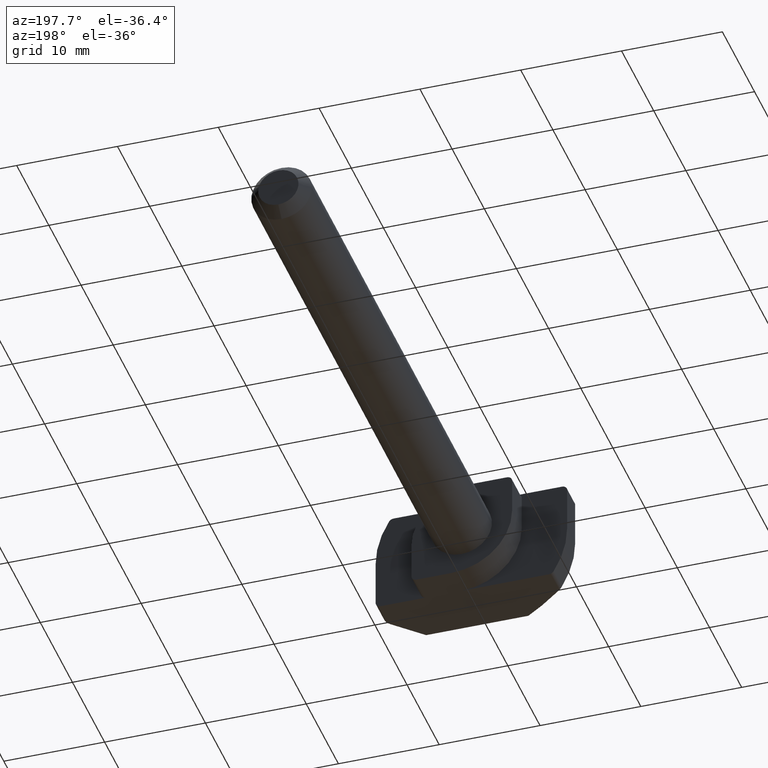
[diagram: clean part render]
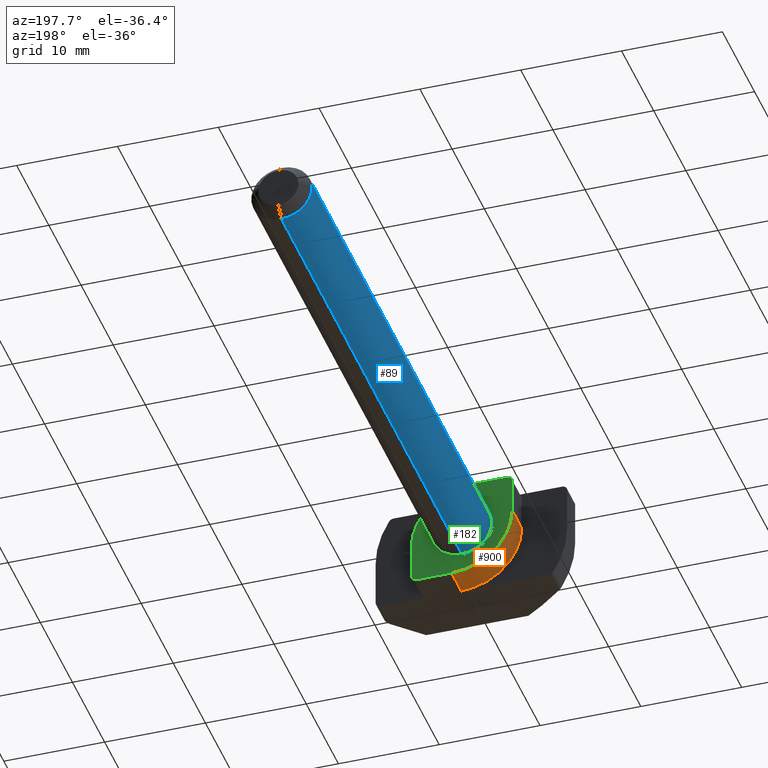
[diagram: same view with three faces highlighted in distinct colors, each labeled with its STEP entity id]
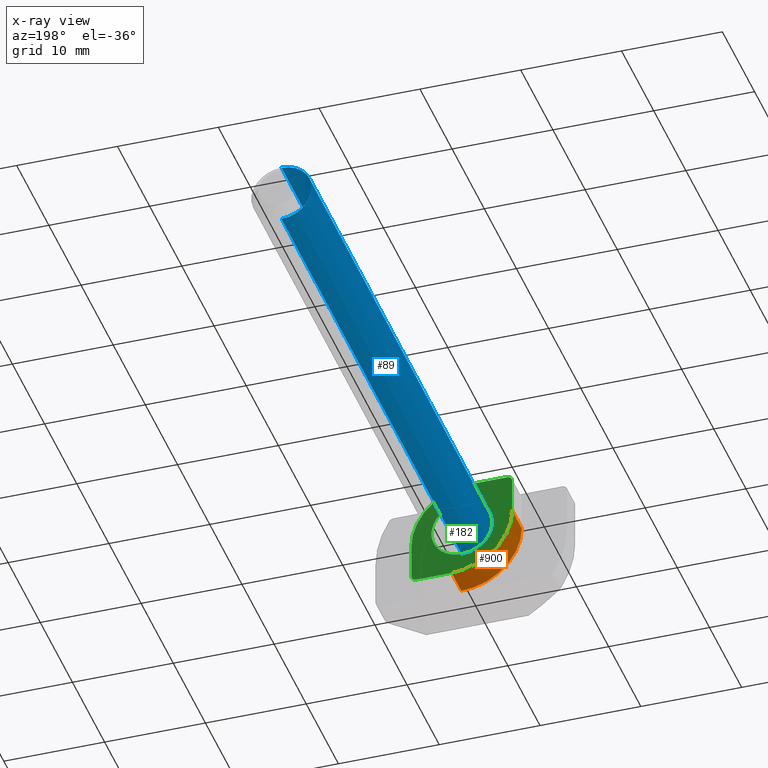
[diagram: x-ray of the same camera — body ghosted, the three highlighted faces saturated]
A machine part, auxiliary view with three faces highlighted in distinct colors.
The next image is the same camera in x-ray (body ghosted, the three faces saturated) — at least one of them is partly hidden behind the body in this view.
Their STEP definitions:

[orange] entity #900 — the highlighted cylindrical surface (partial cylindrical patch) has radius 6 mm, axis along (0, 1, 0).
#7 = VECTOR ( 'NONE', #454, 1000.000000000000000 ) ;
#28 = CARTESIAN_POINT ( 'NONE',  ( 0.9999999999999991118, 4.349999999999999645, 1.000000000000000000 ) ) ;
#44 = CARTESIAN_POINT ( 'NONE',  ( 0.9999999999999991118, 4.349999999999999645, -5.000000000000000000 ) ) ;
#51 = AXIS2_PLACEMENT_3D ( 'NONE', #406, #846, #839 ) ;
#75 = ORIENTED_EDGE ( 'NONE', *, *, #357, .F. ) ;
#122 = CARTESIAN_POINT ( 'NONE',  ( -5.000000000000000888, 1.349999999999999645, 1.000000000000000000 ) ) ;
#153 = ORIENTED_EDGE ( 'NONE', *, *, #804, .F. ) ;
#154 = VECTOR ( 'NONE', #834, 1000.000000000000000 ) ;
#161 = DIRECTION ( 'NONE',  ( -0.000000000000000000, 1.000000000000000000, -0.000000000000000000 ) ) ;
#181 = AXIS2_PLACEMENT_3D ( 'NONE', #28, #161, #374 ) ;
#198 = ORIENTED_EDGE ( 'NONE', *, *, #433, .F. ) ;
#286 = VERTEX_POINT ( 'NONE', #599 ) ;
#337 = CARTESIAN_POINT ( 'NONE',  ( -5.000000000000000888, 1.349999999999999645, 1.000000000000000000 ) ) ;
#347 = DIRECTION ( 'NONE',  ( 0.000000000000000000, -1.000000000000000000, 0.000000000000000000 ) ) ;
#356 = ORIENTED_EDGE ( 'NONE', *, *, #852, .F. ) ;
#357 = EDGE_CURVE ( 'NONE', #621, #286, #616, .T. ) ;
#374 = DIRECTION ( 'NONE',  ( 0.000000000000000000, 0.000000000000000000, -1.000000000000000000 ) ) ;
#406 = CARTESIAN_POINT ( 'NONE',  ( 0.9999999999999991118, 1.349999999999999645, 1.000000000000000000 ) ) ;
#426 = CYLINDRICAL_SURFACE ( 'NONE', #51, 6.000000000000000000 ) ;
#433 = EDGE_CURVE ( 'NONE', #434, #714, #632, .T. ) ;
#434 = VERTEX_POINT ( 'NONE', #657 ) ;
#435 = CARTESIAN_POINT ( 'NONE',  ( 0.9999999999999991118, 1.349999999999999645, 1.000000000000000000 ) ) ;
#454 = DIRECTION ( 'NONE',  ( -0.000000000000000000, 1.000000000000000000, -0.000000000000000000 ) ) ;
#571 = DIRECTION ( 'NONE',  ( 0.000000000000000000, 0.000000000000000000, -1.000000000000000000 ) ) ;
#599 = CARTESIAN_POINT ( 'NONE',  ( 0.9999999999999991118, 1.349999999999999645, -5.000000000000000000 ) ) ;
#610 = LINE ( 'NONE', #44, #7 ) ;
#616 = CIRCLE ( 'NONE', #796, 6.000000000000000000 ) ;
#621 = VERTEX_POINT ( 'NONE', #122 ) ;
#632 = CIRCLE ( 'NONE', #181, 6.000000000000000000 ) ;
#657 = CARTESIAN_POINT ( 'NONE',  ( 0.9999999999999991118, 4.349999999999999645, -5.000000000000000000 ) ) ;
#684 = FACE_OUTER_BOUND ( 'NONE', #750, .T. ) ;
#698 = LINE ( 'NONE', #337, #154 ) ;
#714 = VERTEX_POINT ( 'NONE', #868 ) ;
#750 = EDGE_LOOP ( 'NONE', ( #198, #153, #75, #356 ) ) ;
#796 = AXIS2_PLACEMENT_3D ( 'NONE', #435, #347, #571 ) ;
#804 = EDGE_CURVE ( 'NONE', #286, #434, #610, .T. ) ;
#834 = DIRECTION ( 'NONE',  ( 0.000000000000000000, -1.000000000000000000, 0.000000000000000000 ) ) ;
#839 = DIRECTION ( 'NONE',  ( 0.000000000000000000, 0.000000000000000000, 1.000000000000000000 ) ) ;
#846 = DIRECTION ( 'NONE',  ( 0.000000000000000000, 1.000000000000000000, 0.000000000000000000 ) ) ;
#852 = EDGE_CURVE ( 'NONE', #714, #621, #698, .T. ) ;
#868 = CARTESIAN_POINT ( 'NONE',  ( -5.000000000000000888, 4.349999999999999645, 1.000000000000000000 ) ) ;
#900 = ADVANCED_FACE ( 'NONE', ( #684 ), #426, .T. ) ;

[blue] entity #89 — the highlighted cylindrical surface (edge-blend (fillet) strip) has radius 3 mm, axis along (-0, -1, -0).
#3 = FACE_OUTER_BOUND ( 'NONE', #52, .T. ) ;
#52 = EDGE_LOOP ( 'NONE', ( #890, #485, #679, #556 ) ) ;
#70 = DIRECTION ( 'NONE',  ( 0.000000000000000000, 0.000000000000000000, -1.000000000000000000 ) ) ;
#89 = ADVANCED_FACE ( 'NONE', ( #3 ), #143, .T. ) ;
#115 = EDGE_CURVE ( 'NONE', #403, #670, #791, .T. ) ;
#139 = AXIS2_PLACEMENT_3D ( 'NONE', #649, #793, #862 ) ;
#141 = VERTEX_POINT ( 'NONE', #700 ) ;
#143 = CYLINDRICAL_SURFACE ( 'NONE', #661, 3.000000000000000444 ) ;
#172 = CARTESIAN_POINT ( 'NONE',  ( 3.673940397442059868E-16, 61.35000000000000142, 3.000000000000000444 ) ) ;
#270 = VERTEX_POINT ( 'NONE', #313 ) ;
#292 = CARTESIAN_POINT ( 'NONE',  ( 0.000000000000000000, 60.35000000000003695, -3.000000000000000444 ) ) ;
#313 = CARTESIAN_POINT ( 'NONE',  ( 3.673940397442059868E-16, 60.35000000000003695, 3.000000000000000444 ) ) ;
#325 = EDGE_CURVE ( 'NONE', #670, #141, #873, .T. ) ;
#403 = VERTEX_POINT ( 'NONE', #292 ) ;
#436 = CARTESIAN_POINT ( 'NONE',  ( 0.000000000000000000, 61.35000000000000142, 0.000000000000000000 ) ) ;
#474 = DIRECTION ( 'NONE',  ( 0.000000000000000000, 0.000000000000000000, 1.000000000000000000 ) ) ;
#485 = ORIENTED_EDGE ( 'NONE', *, *, #772, .T. ) ;
#504 = VECTOR ( 'NONE', #642, 1000.000000000000000 ) ;
#556 = ORIENTED_EDGE ( 'NONE', *, *, #325, .T. ) ;
#575 = VECTOR ( 'NONE', #827, 1000.000000000000000 ) ;
#580 = DIRECTION ( 'NONE',  ( -0.000000000000000000, -1.000000000000000000, -0.000000000000000000 ) ) ;
#583 = CARTESIAN_POINT ( 'NONE',  ( 0.000000000000000000, 61.35000000000000142, -3.000000000000000444 ) ) ;
#642 = DIRECTION ( 'NONE',  ( -0.000000000000000000, -1.000000000000000000, -0.000000000000000000 ) ) ;
#649 = CARTESIAN_POINT ( 'NONE',  ( 0.000000000000000000, 4.349999999999999645, 0.000000000000000000 ) ) ;
#661 = AXIS2_PLACEMENT_3D ( 'NONE', #436, #580, #70 ) ;
#670 = VERTEX_POINT ( 'NONE', #781 ) ;
#679 = ORIENTED_EDGE ( 'NONE', *, *, #115, .T. ) ;
#681 = LINE ( 'NONE', #172, #575 ) ;
#700 = CARTESIAN_POINT ( 'NONE',  ( 3.673940397442059868E-16, 4.349999999999999645, 3.000000000000000444 ) ) ;
#705 = CIRCLE ( 'NONE', #812, 3.000000000000000444 ) ;
#752 = EDGE_CURVE ( 'NONE', #270, #141, #681, .T. ) ;
#772 = EDGE_CURVE ( 'NONE', #270, #403, #705, .T. ) ;
#781 = CARTESIAN_POINT ( 'NONE',  ( 0.000000000000000000, 4.349999999999999645, -3.000000000000000444 ) ) ;
#791 = LINE ( 'NONE', #583, #504 ) ;
#793 = DIRECTION ( 'NONE',  ( -0.000000000000000000, 1.000000000000000000, -0.000000000000000000 ) ) ;
#812 = AXIS2_PLACEMENT_3D ( 'NONE', #882, #887, #474 ) ;
#827 = DIRECTION ( 'NONE',  ( -0.000000000000000000, -1.000000000000000000, -0.000000000000000000 ) ) ;
#862 = DIRECTION ( 'NONE',  ( 0.000000000000000000, 0.000000000000000000, -1.000000000000000000 ) ) ;
#873 = CIRCLE ( 'NONE', #139, 3.000000000000000444 ) ;
#882 = CARTESIAN_POINT ( 'NONE',  ( 0.000000000000000000, 60.35000000000003695, 0.000000000000000000 ) ) ;
#887 = DIRECTION ( 'NONE',  ( 0.000000000000000000, -1.000000000000000000, 0.000000000000000000 ) ) ;
#890 = ORIENTED_EDGE ( 'NONE', *, *, #752, .F. ) ;

[green] entity #182 — the highlighted planar face has unit normal (0, -1, 0).
#4 = DIRECTION ( 'NONE',  ( -1.000000000000000000, -0.000000000000000000, -0.000000000000000000 ) ) ;
#23 = DIRECTION ( 'NONE',  ( -0.000000000000000000, 1.000000000000000000, -0.000000000000000000 ) ) ;
#25 = DIRECTION ( 'NONE',  ( 0.000000000000000000, 0.000000000000000000, -1.000000000000000000 ) ) ;
#28 = CARTESIAN_POINT ( 'NONE',  ( 0.9999999999999991118, 4.349999999999999645, 1.000000000000000000 ) ) ;
#35 = VECTOR ( 'NONE', #108, 1000.000000000000000 ) ;
#46 = VERTEX_POINT ( 'NONE', #651 ) ;
#53 = DIRECTION ( 'NONE',  ( -0.000000000000000000, 1.000000000000000000, -0.000000000000000000 ) ) ;
#65 = CIRCLE ( 'NONE', #484, 0.4999999999999995559 ) ;
#103 = CARTESIAN_POINT ( 'NONE',  ( -5.000000000000000888, 4.349999999999999645, 5.000000000000000000 ) ) ;
#108 = DIRECTION ( 'NONE',  ( -0.000000000000000000, -0.000000000000000000, -1.000000000000000000 ) ) ;
#109 = VECTOR ( 'NONE', #4, 1000.000000000000000 ) ;
#132 = CARTESIAN_POINT ( 'NONE',  ( -4.500000000000000888, 4.349999999999999645, 5.000000000000000000 ) ) ;
#134 = CARTESIAN_POINT ( 'NONE',  ( -4.500000000000000888, 4.349999999999999645, 4.500000000000000888 ) ) ;
#138 = AXIS2_PLACEMENT_3D ( 'NONE', #894, #165, #801 ) ;
#139 = AXIS2_PLACEMENT_3D ( 'NONE', #649, #793, #862 ) ;
#141 = VERTEX_POINT ( 'NONE', #700 ) ;
#161 = DIRECTION ( 'NONE',  ( -0.000000000000000000, 1.000000000000000000, -0.000000000000000000 ) ) ;
#165 = DIRECTION ( 'NONE',  ( 0.000000000000000000, -1.000000000000000000, 0.000000000000000000 ) ) ;
#176 = EDGE_CURVE ( 'NONE', #751, #693, #647, .T. ) ;
#178 = CARTESIAN_POINT ( 'NONE',  ( -1.000000000000000888, 4.349999999999999645, -1.000000000000000000 ) ) ;
#181 = AXIS2_PLACEMENT_3D ( 'NONE', #28, #161, #374 ) ;
#182 = ADVANCED_FACE ( 'NONE', ( #922, #771 ), #822, .F. ) ;
#210 = EDGE_CURVE ( 'NONE', #141, #670, #515, .T. ) ;
#223 = CARTESIAN_POINT ( 'NONE',  ( 4.999999999999999112, 4.349999999999999645, 5.000000000000000000 ) ) ;
#230 = ORIENTED_EDGE ( 'NONE', *, *, #210, .F. ) ;
#231 = EDGE_LOOP ( 'NONE', ( #487, #795, #643, #540, #452, #623, #263, #674 ) ) ;
#234 = VECTOR ( 'NONE', #320, 1000.000000000000000 ) ;
#248 = AXIS2_PLACEMENT_3D ( 'NONE', #134, #53, #416 ) ;
#252 = CARTESIAN_POINT ( 'NONE',  ( 0.000000000000000000, 4.349999999999999645, 0.000000000000000000 ) ) ;
#263 = ORIENTED_EDGE ( 'NONE', *, *, #176, .F. ) ;
#308 = CIRCLE ( 'NONE', #590, 6.000000000000000000 ) ;
#309 = DIRECTION ( 'NONE',  ( 0.000000000000000000, 0.000000000000000000, -1.000000000000000000 ) ) ;
#315 = LINE ( 'NONE', #103, #35 ) ;
#320 = DIRECTION ( 'NONE',  ( -1.000000000000000000, -0.000000000000000000, -0.000000000000000000 ) ) ;
#325 = EDGE_CURVE ( 'NONE', #670, #141, #873, .T. ) ;
#342 = CARTESIAN_POINT ( 'NONE',  ( 4.999999999999999112, 4.349999999999999645, -1.000000000000000000 ) ) ;
#350 = LINE ( 'NONE', #587, #109 ) ;
#374 = DIRECTION ( 'NONE',  ( 0.000000000000000000, 0.000000000000000000, -1.000000000000000000 ) ) ;
#385 = CARTESIAN_POINT ( 'NONE',  ( -5.000000000000000888, 4.349999999999999645, 5.000000000000000000 ) ) ;
#389 = CARTESIAN_POINT ( 'NONE',  ( 4.499999999999999112, 4.349999999999999645, -4.500000000000001776 ) ) ;
#397 = DIRECTION ( 'NONE',  ( -0.000000000000000000, 1.000000000000000000, -0.000000000000000000 ) ) ;
#404 = EDGE_CURVE ( 'NONE', #685, #482, #576, .T. ) ;
#416 = DIRECTION ( 'NONE',  ( 0.000000000000000000, 0.000000000000000000, -1.000000000000000000 ) ) ;
#433 = EDGE_CURVE ( 'NONE', #434, #714, #632, .T. ) ;
#434 = VERTEX_POINT ( 'NONE', #657 ) ;
#447 = EDGE_CURVE ( 'NONE', #482, #46, #65, .T. ) ;
#452 = ORIENTED_EDGE ( 'NONE', *, *, #758, .F. ) ;
#463 = CARTESIAN_POINT ( 'NONE',  ( -5.000000000000000888, 4.349999999999999645, 4.500000000000000888 ) ) ;
#469 = AXIS2_PLACEMENT_3D ( 'NONE', #252, #529, #659 ) ;
#482 = VERTEX_POINT ( 'NONE', #816 ) ;
#484 = AXIS2_PLACEMENT_3D ( 'NONE', #389, #23, #309 ) ;
#487 = ORIENTED_EDGE ( 'NONE', *, *, #404, .T. ) ;
#515 = CIRCLE ( 'NONE', #469, 3.000000000000000444 ) ;
#518 = VERTEX_POINT ( 'NONE', #463 ) ;
#529 = DIRECTION ( 'NONE',  ( -0.000000000000000000, 1.000000000000000000, -0.000000000000000000 ) ) ;
#540 = ORIENTED_EDGE ( 'NONE', *, *, #433, .T. ) ;
#548 = ORIENTED_EDGE ( 'NONE', *, *, #325, .F. ) ;
#576 = LINE ( 'NONE', #223, #842 ) ;
#587 = CARTESIAN_POINT ( 'NONE',  ( -5.000000000000000888, 4.349999999999999645, -5.000000000000000000 ) ) ;
#590 = AXIS2_PLACEMENT_3D ( 'NONE', #178, #397, #25 ) ;
#623 = ORIENTED_EDGE ( 'NONE', *, *, #844, .T. ) ;
#632 = CIRCLE ( 'NONE', #181, 6.000000000000000000 ) ;
#643 = ORIENTED_EDGE ( 'NONE', *, *, #711, .T. ) ;
#647 = LINE ( 'NONE', #385, #234 ) ;
#649 = CARTESIAN_POINT ( 'NONE',  ( 0.000000000000000000, 4.349999999999999645, 0.000000000000000000 ) ) ;
#651 = CARTESIAN_POINT ( 'NONE',  ( 4.499999999999999112, 4.349999999999999645, -5.000000000000000000 ) ) ;
#657 = CARTESIAN_POINT ( 'NONE',  ( 0.9999999999999991118, 4.349999999999999645, -5.000000000000000000 ) ) ;
#659 = DIRECTION ( 'NONE',  ( 0.000000000000000000, 0.000000000000000000, -1.000000000000000000 ) ) ;
#670 = VERTEX_POINT ( 'NONE', #781 ) ;
#674 = ORIENTED_EDGE ( 'NONE', *, *, #782, .T. ) ;
#685 = VERTEX_POINT ( 'NONE', #342 ) ;
#693 = VERTEX_POINT ( 'NONE', #132 ) ;
#700 = CARTESIAN_POINT ( 'NONE',  ( 3.673940397442059868E-16, 4.349999999999999645, 3.000000000000000444 ) ) ;
#711 = EDGE_CURVE ( 'NONE', #46, #434, #350, .T. ) ;
#714 = VERTEX_POINT ( 'NONE', #868 ) ;
#751 = VERTEX_POINT ( 'NONE', #823 ) ;
#758 = EDGE_CURVE ( 'NONE', #518, #714, #315, .T. ) ;
#771 = FACE_OUTER_BOUND ( 'NONE', #231, .T. ) ;
#781 = CARTESIAN_POINT ( 'NONE',  ( 0.000000000000000000, 4.349999999999999645, -3.000000000000000444 ) ) ;
#782 = EDGE_CURVE ( 'NONE', #751, #685, #308, .T. ) ;
#790 = DIRECTION ( 'NONE',  ( -0.000000000000000000, -0.000000000000000000, -1.000000000000000000 ) ) ;
#793 = DIRECTION ( 'NONE',  ( -0.000000000000000000, 1.000000000000000000, -0.000000000000000000 ) ) ;
#795 = ORIENTED_EDGE ( 'NONE', *, *, #447, .T. ) ;
#801 = DIRECTION ( 'NONE',  ( 0.000000000000000000, -0.000000000000000000, -1.000000000000000000 ) ) ;
#816 = CARTESIAN_POINT ( 'NONE',  ( 4.999999999999999112, 4.349999999999999645, -4.500000000000001776 ) ) ;
#822 = PLANE ( 'NONE',  #138 ) ;
#823 = CARTESIAN_POINT ( 'NONE',  ( -1.000000000000000888, 4.349999999999999645, 5.000000000000000000 ) ) ;
#842 = VECTOR ( 'NONE', #790, 1000.000000000000000 ) ;
#844 = EDGE_CURVE ( 'NONE', #518, #693, #903, .T. ) ;
#862 = DIRECTION ( 'NONE',  ( 0.000000000000000000, 0.000000000000000000, -1.000000000000000000 ) ) ;
#868 = CARTESIAN_POINT ( 'NONE',  ( -5.000000000000000888, 4.349999999999999645, 1.000000000000000000 ) ) ;
#873 = CIRCLE ( 'NONE', #139, 3.000000000000000444 ) ;
#894 = CARTESIAN_POINT ( 'NONE',  ( -5.000000000000000888, 4.349999999999999645, 5.000000000000000000 ) ) ;
#902 = EDGE_LOOP ( 'NONE', ( #548, #230 ) ) ;
#903 = CIRCLE ( 'NONE', #248, 0.5000000000000004441 ) ;
#922 = FACE_BOUND ( 'NONE', #902, .T. ) ;